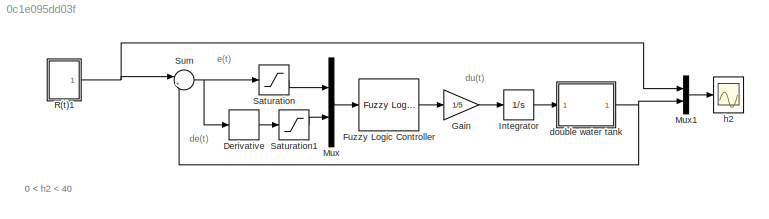
MODEL slx_0c1e095dd03f
KIND model
CONFIG AbsTol = auto
CONFIG EnableMultiTasking = on
CONFIG FixedStep = auto
CONFIG MaxStep = auto
CONFIG MinStep = auto
CONFIG PreLoadFcn = fuz_sugeno5=readfis('fuz_sugeno5.fis');
CONFIG RelTol = 1e-3
CONFIG SampleTimeConstraint = Unconstrained
CONFIG Solver = ode3
CONFIG SolverName = ode3
CONFIG StartTime = 0.0
CONFIG StopFcn = plot(h(:,1),h(:,2),'r',h(:,1),h(:,3),'b');grid;\nxlabel('times');\nylabel('Muc nuoc bon 2');\nlegend('ref','measure',3);
CONFIG StopTime = 3000
BLOCK [Derivative] Derivative
BLOCK [Reference] Fuzzy Logic Controller  REF=fuzblock/Fuzzy Logic   (lib defined in mdl_858b3b3e7478)
Controller
  Ports = [1, 1]
  SourceBlock = fuzblock/Fuzzy Logic \nController
  SourceType = FIS
BLOCK [Gain] Gain
  Gain = 1/5
BLOCK [Integrator] Integrator
  LimitOutput = on
  LowerSaturationLimit = 0
  Ports = [1, 1]
  UpperSaturationLimit = 1
BLOCK [Mux] Mux
  DisplayOption = bar
  Inputs = 2
  Ports = [2, 1]
BLOCK [Mux] Mux1
  DisplayOption = bar
  Inputs = 2
  Ports = [2, 1]
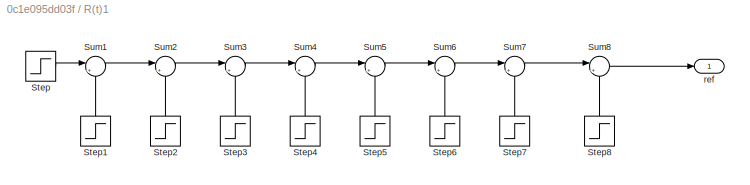
BLOCK [SubSystem] R(t)1
  Ports = [0, 1]
  RequestExecContextInheritance = off
  Variant = off
BLOCK [Step] R(t)1/Step
  After = 15
  SampleTime = 0
  Time = 0
BLOCK [Step] R(t)1/Step1
  After = 5
  SampleTime = 0
  Time = 250
BLOCK [Step] R(t)1/Step2
  After = 5
  SampleTime = 0
  Time = 500
BLOCK [Step] R(t)1/Step3
  After = 15
  SampleTime = 0
  Time = 750
BLOCK [Step] R(t)1/Step4
  After = 10
  SampleTime = 0
  Time = 1000
BLOCK [Step] R(t)1/Step5
  After = 15
  SampleTime = 0
  Time = 1250
BLOCK [Step] R(t)1/Step6
  After = 5
  SampleTime = 0
  Time = 1500
BLOCK [Step] R(t)1/Step7
  After = 10
  SampleTime = 0
  Time = 1750
BLOCK [Step] R(t)1/Step8
  After = 5
  SampleTime = 0
  Time = 2000
BLOCK [Sum] R(t)1/Sum1
  IconShape = round
  InputSameDT = off
  Inputs = |+-
  OutDataTypeStr = Inherit: Inherit via internal rule
  Ports = [2, 1]
BLOCK [Sum] R(t)1/Sum2
  IconShape = round
  InputSameDT = off
  Inputs = |++
  OutDataTypeStr = Inherit: Inherit via internal rule
  Ports = [2, 1]
BLOCK [Sum] R(t)1/Sum3
  IconShape = round
  InputSameDT = off
  Inputs = |++
  OutDataTypeStr = Inherit: Inherit via internal rule
  Ports = [2, 1]
BLOCK [Sum] R(t)1/Sum4
  IconShape = round
  InputSameDT = off
  Inputs = |+-
  OutDataTypeStr = Inherit: Inherit via internal rule
  Ports = [2, 1]
BLOCK [Sum] R(t)1/Sum5
  IconShape = round
  InputSameDT = off
  Inputs = |++
  OutDataTypeStr = Inherit: Inherit via internal rule
  Ports = [2, 1]
BLOCK [Sum] R(t)1/Sum6
  IconShape = round
  InputSameDT = off
  Inputs = |+-
  OutDataTypeStr = Inherit: Inherit via internal rule
  Ports = [2, 1]
BLOCK [Sum] R(t)1/Sum7
  IconShape = round
  InputSameDT = off
  Inputs = |++
  OutDataTypeStr = Inherit: Inherit via internal rule
  Ports = [2, 1]
BLOCK [Sum] R(t)1/Sum8
  IconShape = round
  InputSameDT = off
  Inputs = |+-
  OutDataTypeStr = Inherit: Inherit via internal rule
  Ports = [2, 1]
BLOCK [Outport] R(t)1/ref
  IconDisplay = Port number
BLOCK [Saturate] Saturation
  InputPortMap = u0
  LowerLimit = -20
  Ports = [1, 1]
  UpperLimit = 20
BLOCK [Saturate] Saturation1
  InputPortMap = u0
  LowerLimit = -1
  Ports = [1, 1]
  UpperLimit = 1
BLOCK [Sum] Sum
  IconShape = round
  InputSameDT = off
  Inputs = |+-
  OutDataTypeStr = Inherit: Inherit via internal rule
  Ports = [2, 1]
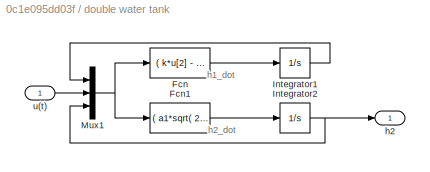
BLOCK [SubSystem] double water tank
  Ports = [1, 1]
  RequestExecContextInheritance = off
  Variant = off
BLOCK [Fcn] double water tank/Fcn
  Expr = (   k*u[2] - a1*sqrt( 2*g*abs(u[1]-u[3]) )   )/A_1
BLOCK [Fcn] double water tank/Fcn1
  Expr = (  a1*sqrt( 2*g*abs(u[1]-u[3]) ) - a2*sqrt( 2*g*u[3] )  )/A_2
BLOCK [Integrator] double water tank/Integrator1
  LimitOutput = on
  LowerSaturationLimit = 0
  Ports = [1, 1]
  UpperSaturationLimit = 100
BLOCK [Integrator] double water tank/Integrator2
  LimitOutput = on
  LowerSaturationLimit = 0
  Ports = [1, 1]
  UpperSaturationLimit = 100
BLOCK [Mux] double water tank/Mux1
  DisplayOption = bar
  Inputs = 3
  Ports = [3, 1]
BLOCK [Outport] double water tank/h2
  IconDisplay = Port number
BLOCK [Inport] double water tank/u(t)
  IconDisplay = Port number
BLOCK [Scope] h2
  NumInputPorts = 1
  Ports = [1]
  ScopeSpecificationString = C++SS(StrPVP('Location','[1, 53, 1367, 719]'),StrPVP('Open','off'),StrPVP('ZoomMode','yonly'),MxPVP('AxesTitles',24,'struct(''axes1'',''%<SignalLabel>'')'),MxPVP('ScopeGraphics',28,'struct(''FigureColor'',''[0.5 0.5 0.5]'',''AxesColor'',''[0 0 0]'',''AxesTickColor'',''[1 1 1]'',''LineColors'',''[1 1 0;1 0 1;0 1 1;1 0 0;0 1 0;0 0 1]'',''LineStyles'',''-|-|-|-|-|-'',''LineWidths'',''[0.5 0.5 0.5 0.5...<+344ch>
ANNOTATION (root): 0 < h2 < 40
ANNOTATION (root): de(t)
ANNOTATION (root): du(t)
ANNOTATION (root): e(t)
ANNOTATION double water tank: h1_dot
ANNOTATION double water tank: h2_dot
LINE Derivative:1 -> Saturation1:1
LINE Fuzzy Logic Controller:1 -> Gain:1
LINE Gain:1 -> Integrator:1
LINE Integrator:1 -> double water tank:1
LINE Mux1:1 -> h2:1
LINE Mux:1 -> Fuzzy Logic Controller:1
LINE R(t)1/Step1:1 -> R(t)1/Sum1:2
LINE R(t)1/Step2:1 -> R(t)1/Sum2:2
LINE R(t)1/Step3:1 -> R(t)1/Sum3:2
LINE R(t)1/Step4:1 -> R(t)1/Sum4:2
LINE R(t)1/Step5:1 -> R(t)1/Sum5:2
LINE R(t)1/Step6:1 -> R(t)1/Sum6:2
LINE R(t)1/Step7:1 -> R(t)1/Sum7:2
LINE R(t)1/Step8:1 -> R(t)1/Sum8:2
LINE R(t)1/Step:1 -> R(t)1/Sum1:1
LINE R(t)1/Sum1:1 -> R(t)1/Sum2:1
LINE R(t)1/Sum2:1 -> R(t)1/Sum3:1
LINE R(t)1/Sum3:1 -> R(t)1/Sum4:1
LINE R(t)1/Sum4:1 -> R(t)1/Sum5:1
LINE R(t)1/Sum5:1 -> R(t)1/Sum6:1
LINE R(t)1/Sum6:1 -> R(t)1/Sum7:1
LINE R(t)1/Sum7:1 -> R(t)1/Sum8:1
LINE R(t)1/Sum8:1 -> R(t)1/ref:1
NET R(t)1:1 -> Mux1:1, Sum:1
LINE Saturation1:1 -> Mux:2
LINE Saturation:1 -> Mux:1
NET Sum:1 -> Derivative:1, Saturation:1
LINE double water tank/Fcn1:1 -> double water tank/Integrator2:1
LINE double water tank/Fcn:1 -> double water tank/Integrator1:1
LINE double water tank/Integrator1:1 -> double water tank/Mux1:1
NET double water tank/Integrator2:1 -> double water tank/Mux1:3, double water tank/h2:1
NET double water tank/Mux1:1 -> double water tank/Fcn1:1, double water tank/Fcn:1
LINE double water tank/u(t):1 -> double water tank/Mux1:2
NET double water tank:1 -> Mux1:2, Sum:2
note: NET lines group one-source signal fan-out (src -> all destinations, sorted); 1:1 wires keep LINE
